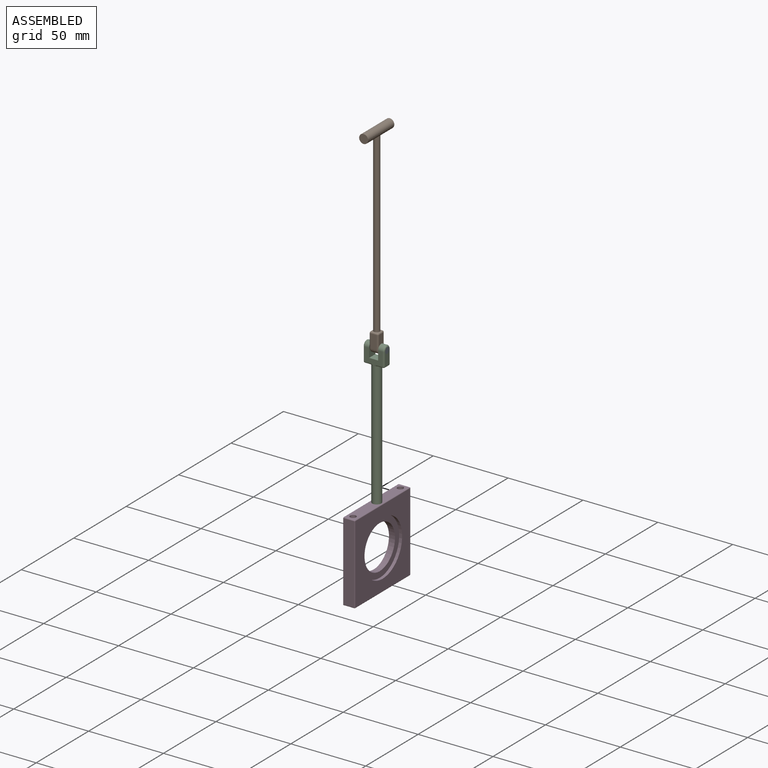
[diagram: assembled view]
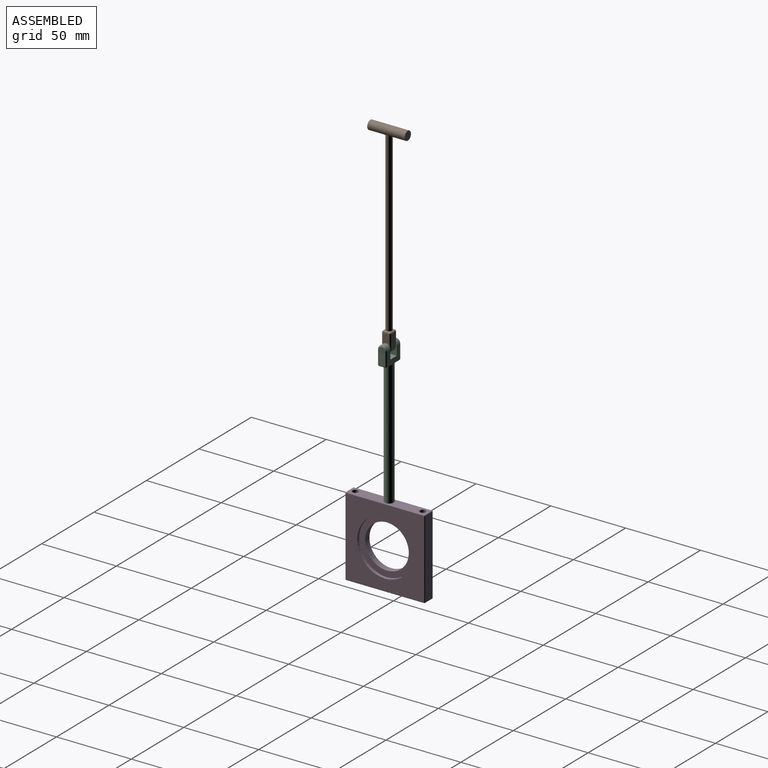
[diagram: assembled view, second angle]
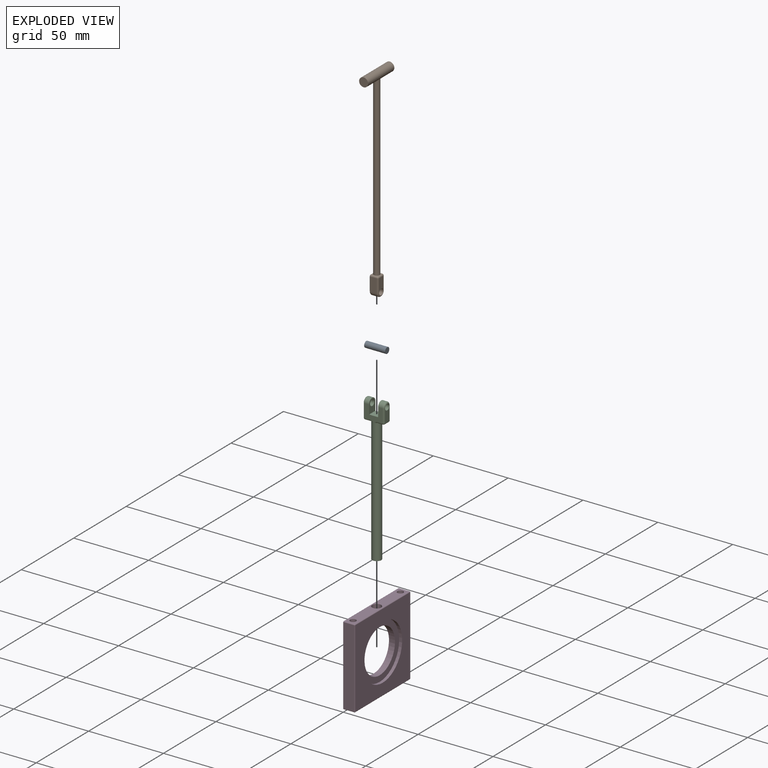
[diagram: exploded view]
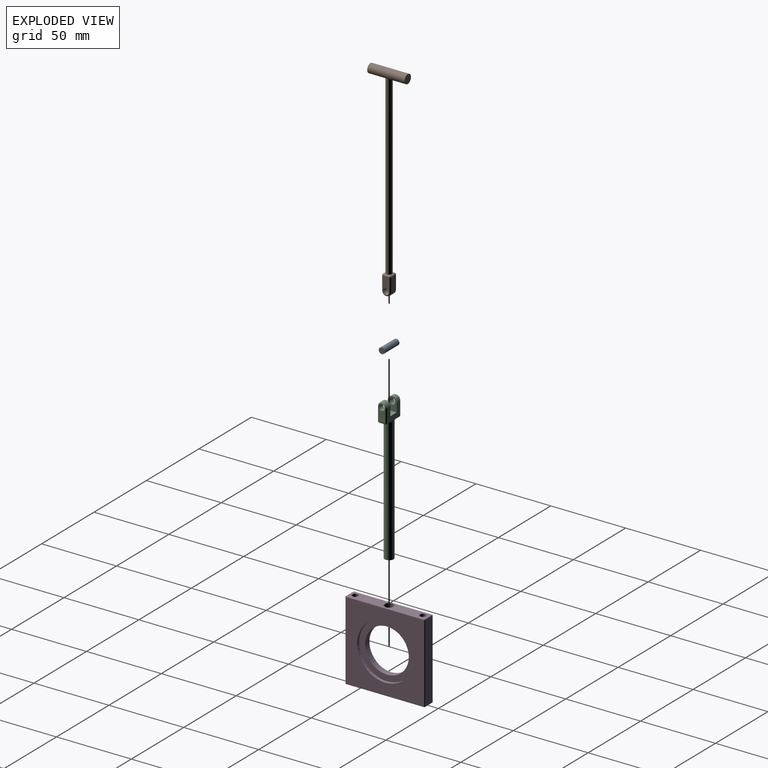
[diagram: exploded view, second angle]
ASSEMBLY  parts=4 mates=3
PART A: 3 faces, bbox 14x4x4 mm
  f0: plane 4x4mm, normal (1,0,0), area 12.5mm2, adj f2
  f1: plane 4x4mm, normal (-1,0,0), area 12.5mm2, adj f2
  f2: cylinder r=2mm len=14mm, axis (-1,0,0), area 175.8mm2, adj f0,f1
PART B: 28 faces, bbox 25x6x136.7 mm
  f0: plane 2x2mm, normal (0,0,1), area 0.9mm2, adj f3,f16,f20
  f1: plane 2x2mm, normal (0,0,1), area 0.9mm2, adj f3,f20,f21
  f2: plane 2x2mm, normal (0,0,1), area 0.9mm2, adj f3,f21,f22
  f3: cylinder r=2mm len=118.26mm, axis (0,0,-1), area 1481.2mm2, adj f0,f1,f2,f8,f11
  f4: plane 9x4mm, normal (0,1,0), area 29.7mm2, adj f9,f15,f16,f17
  f5: plane 9x4mm, normal (0,-1,0), area 29.7mm2, adj f9,f21,f25,f26
  f6: plane 9x4mm, normal (-1,0,0), area 36mm2, adj f10,f15,f20,f25
  f7: plane 9x4mm, normal (1,0,0), area 36mm2, adj f10,f17,f22,f26
  f8: plane 2x2mm, normal (0,0,1), area 0.9mm2, adj f3,f16,f22
  f9: cylinder r=2mm len=6mm, axis (0,1,0), area 75.4mm2, adj f4,f5,f14,f27
  f10: cylinder r=3mm len=6mm, axis (0,1,0), area 37.7mm2, adj f6,f7,f14,f27
  f11: cylinder r=3mm len=25mm, axis (-1,0,0), area 457.8mm2, adj f3,f12,f13
  f12: plane 6x6mm, normal (1,0,0), area 28.3mm2, adj f11
  f13: plane 6x6mm, normal (-1,0,0), area 28.3mm2, adj f11
  f14: torus R=2mm, axis (0,-1,0), area 13mm2, adj f9,f10,f15,f17
  f15: cylinder r=1mm len=9mm, axis (0,0,-1), area 14.1mm2, adj f4,f6,f14,f18
  f16: cylinder r=1mm len=4mm, axis (-1,0,0), area 6.3mm2, adj f0,f4,f8,f18,f19
  f17: cylinder r=1mm len=9mm, axis (0,0,1), area 14.1mm2, adj f4,f7,f14,f19
  f18: sphere r=1mm, area 1.6mm2, adj f15,f16,f20
  f19: sphere r=1mm, area 1.6mm2, adj f16,f17,f22
  f20: cylinder r=1mm len=4mm, axis (0,-1,0), area 6.3mm2, adj f0,f1,f6,f18,f23
  f21: cylinder r=1mm len=4mm, axis (1,0,0), area 6.3mm2, adj f1,f2,f5,f23,f24
  f22: cylinder r=1mm len=4mm, axis (0,1,0), area 6.3mm2, adj f2,f7,f8,f19,f24
  f23: sphere r=1mm, area 1.6mm2, adj f20,f21,f25
  f24: sphere r=1mm, area 1.6mm2, adj f21,f22,f26
  f25: cylinder r=1mm len=9mm, axis (0,0,1), area 14.1mm2, adj f5,f6,f23,f27
  f26: cylinder r=1mm len=9mm, axis (0,0,-1), area 14.1mm2, adj f5,f7,f24,f27
  f27: torus R=2mm, axis (0,-1,0), area 13mm2, adj f9,f10,f25,f26
PART C: 35 faces, bbox 14.2x6.7x96.9 mm
  f0: plane 9x4mm, normal (1,0,0), area 29.7mm2, adj f13,f28,f32,f33
  f1: plane 12.19x10.19mm, normal (0,1,0), area 73.6mm2, adj f4,f9,f10,f12,f14,f18,f21,f24
  f2: plane 9x4mm, normal (-1,0,0), area 29.7mm2, adj f11,f19,f20,f24
  f3: plane 12.19x10.19mm, normal (0,-1,0), area 73.6mm2, adj f4,f9,f10,f12,f14,f15,f16,f19
  f4: plane 6x6mm, normal (0,0,1), area 36mm2, adj f1,f3,f9,f10
  f5: cylinder r=3mm len=83.45mm, axis (0,0,-1), area 1573mm2, adj f6,f7,f8,f15,f18,f25,f26
  f6: plane 6x6mm, normal (0,0,-1), area 28.3mm2, adj f5
  f7: plane 4x3.76mm, normal (0,0,-1), area 13mm2, adj f5,f27,f28,f29
  f8: plane 4x3.76mm, normal (0,0,-1), area 13mm2, adj f5,f16,f20,f21
  f9: plane 9x6mm, normal (-1,0,0), area 37.6mm2, adj f1,f3,f4,f13,f14
  f10: plane 9x6mm, normal (1,0,0), area 37.6mm2, adj f1,f3,f4,f11,f12
  f11: cylinder r=2mm len=4mm, axis (-1,0,0), area 50.3mm2, adj f2,f10,f22
  f12: cylinder r=3mm len=6mm, axis (-1,0,0), area 28.3mm2, adj f1,f3,f10,f22
  f13: cylinder r=2mm len=4mm, axis (-1,0,0), area 50.3mm2, adj f0,f9,f34
  f14: cylinder r=3mm len=6mm, axis (-1,0,0), area 28.3mm2, adj f1,f3,f9,f34
  f15: bspline ~2.56x1.17mm, area 1.5mm2, adj f3,f5,f16
  f16: cylinder r=1mm len=3.76mm, axis (1,0,0), area 5.9mm2, adj f3,f8,f15,f17
  f17: sphere r=1mm, area 1.6mm2, adj f16,f19,f20
  f18: bspline ~2.56x1.17mm, area 1.5mm2, adj f1,f5,f21
  f19: cylinder r=1mm len=9mm, axis (0,0,1), area 14.1mm2, adj f2,f3,f17,f22
  f20: cylinder r=1mm len=4mm, axis (0,-1,0), area 6.3mm2, adj f2,f8,f17,f23
  f21: cylinder r=1mm len=3.76mm, axis (-1,0,0), area 5.9mm2, adj f1,f8,f18,f23
  f22: torus R=2mm, axis (1,0,0), area 13mm2, adj f11,f12,f19,f24
  f23: sphere r=1mm, area 1.6mm2, adj f20,f21,f24
  f24: cylinder r=1mm len=9mm, axis (0,0,-1), area 14.1mm2, adj f1,f2,f22,f23
  f25: bspline ~2.56x1.17mm, area 1.5mm2, adj f1,f5,f27
  f26: bspline ~2.56x1.17mm, area 1.5mm2, adj f3,f5,f29
  f27: cylinder r=1mm len=3.76mm, axis (-1,0,0), area 5.9mm2, adj f1,f7,f25,f30
  f28: cylinder r=1mm len=4mm, axis (0,1,0), area 6.3mm2, adj f0,f7,f30,f31
  f29: cylinder r=1mm len=3.76mm, axis (1,0,0), area 5.9mm2, adj f3,f7,f26,f31
  f30: sphere r=1mm, area 1.6mm2, adj f27,f28,f32
  f31: sphere r=1mm, area 1.6mm2, adj f28,f29,f33
  f32: cylinder r=1mm len=9mm, axis (0,0,1), area 14.1mm2, adj f0,f1,f30,f34
  f33: cylinder r=1mm len=9mm, axis (0,0,-1), area 14.1mm2, adj f0,f3,f31,f34
  f34: torus R=2mm, axis (1,0,0), area 13mm2, adj f13,f14,f32,f33
PART D: 35 faces, bbox 8x53.1x53.1 mm
  f0: cylinder r=14.55mm len=29.1mm, axis (-1,0,0), area 365.7mm2, adj f1,f8
  f1: plane 37.1x37.1mm, normal (1,0,0), area 415.9mm2, adj f0,f6
  f2: plane 52.1x7mm, normal (0,1,0), area 364.7mm2, adj f23,f28,f31,f34
  f3: plane 52.1x7mm, normal (0,0,1), area 311.3mm2, adj f11,f12,f13,f18,f19,f28,f29
  f4: plane 52.1x7mm, normal (0,-1,0), area 364.7mm2, adj f15,f19,f20,f21
  f5: plane 52.1x7mm, normal (0,0,-1), area 339.6mm2, adj f11,f12,f21,f22,f30,f31
  f6: cylinder r=18.55mm len=37.1mm, axis (-1,0,0), area 233.1mm2, adj f1,f7
  f7: plane 52.1x52.1mm, normal (1,0,0), area 1633.4mm2, adj f6,f15,f18,f22,f23
  f8: plane 37.1x37.1mm, normal (-1,0,0), area 415.9mm2, adj f0,f9
  f9: cylinder r=18.55mm len=37.1mm, axis (1,0,0), area 233.1mm2, adj f8,f10
  f10: plane 52.1x52.1mm, normal (-1,0,0), area 1633.4mm2, adj f9,f20,f29,f30,f34
  f11: cylinder r=2mm len=53.1mm, axis (0,0,1), area 667.3mm2, adj f3,f5
  f12: cylinder r=2mm len=53.1mm, axis (0,0,1), area 667.3mm2, adj f3,f5
  f13: cylinder r=3mm len=6mm, axis (0,0,1), area 113.1mm2, adj f3,f14
  f14: plane 6x6mm, normal (0,0,1), area 28.3mm2, adj f13
  f15: cylinder r=0.5mm len=52.1mm, axis (0,0,1), area 40.9mm2, adj f4,f7,f16,f17
  f16: sphere r=0.5mm, area 0.4mm2, adj f15,f18,f19
  f17: sphere r=0.5mm, area 0.4mm2, adj f15,f21,f22
  f18: cylinder r=0.5mm len=52.1mm, axis (0,1,0), area 40.9mm2, adj f3,f7,f16,f24
  f19: cylinder r=0.5mm len=7mm, axis (-1,0,0), area 5.5mm2, adj f3,f4,f16,f25
  f20: cylinder r=0.5mm len=52.1mm, axis (0,0,1), area 40.9mm2, adj f4,f10,f25,f26
  f21: cylinder r=0.5mm len=7mm, axis (1,0,0), area 5.5mm2, adj f4,f5,f17,f26
  f22: cylinder r=0.5mm len=52.1mm, axis (0,-1,0), area 40.9mm2, adj f5,f7,f17,f27
  f23: cylinder r=0.5mm len=52.1mm, axis (0,0,-1), area 40.9mm2, adj f2,f7,f24,f27
  f24: sphere r=0.5mm, area 0.4mm2, adj f18,f23,f28
  f25: sphere r=0.5mm, area 0.4mm2, adj f19,f20,f29
  f26: sphere r=0.5mm, area 0.4mm2, adj f20,f21,f30
  f27: sphere r=0.5mm, area 0.4mm2, adj f22,f23,f31
  f28: cylinder r=0.5mm len=7mm, axis (1,0,0), area 5.5mm2, adj f2,f3,f24,f32
  f29: cylinder r=0.5mm len=52.1mm, axis (0,1,0), area 40.9mm2, adj f3,f10,f25,f32
  f30: cylinder r=0.5mm len=52.1mm, axis (0,-1,0), area 40.9mm2, adj f5,f10,f26,f33
  f31: cylinder r=0.5mm len=7mm, axis (-1,0,0), area 5.5mm2, adj f2,f5,f27,f33
  f32: sphere r=0.5mm, area 0.4mm2, adj f28,f29,f34
  f33: sphere r=0.5mm, area 0.4mm2, adj f30,f31,f34
  f34: cylinder r=0.5mm len=52.1mm, axis (0,0,-1), area 40.9mm2, adj f2,f10,f32,f33
PLACE A t=(-93.01,-28.01,-16.07)mm
PLACE B rot(axis=(0,0,-1),90deg) t=(-93.01,-28.01,107.93)mm
PLACE C t=(-93.01,-28.01,-16.07)mm
PLACE D t=(-93.01,-28.01,-22.07)mm
MATE fastened A.f2 <-> C.f11  axis (1,0,0) through (-86.01,-28.01,97.93)mm
MATE revolute B.f9 <-> C.f11  axis (-1,0,0) through (-96.01,-28.01,97.93)mm
MATE fastened C.f5 <-> D.f13  axis (0,0,-1) through (-93.01,-28.01,4.48)mm
